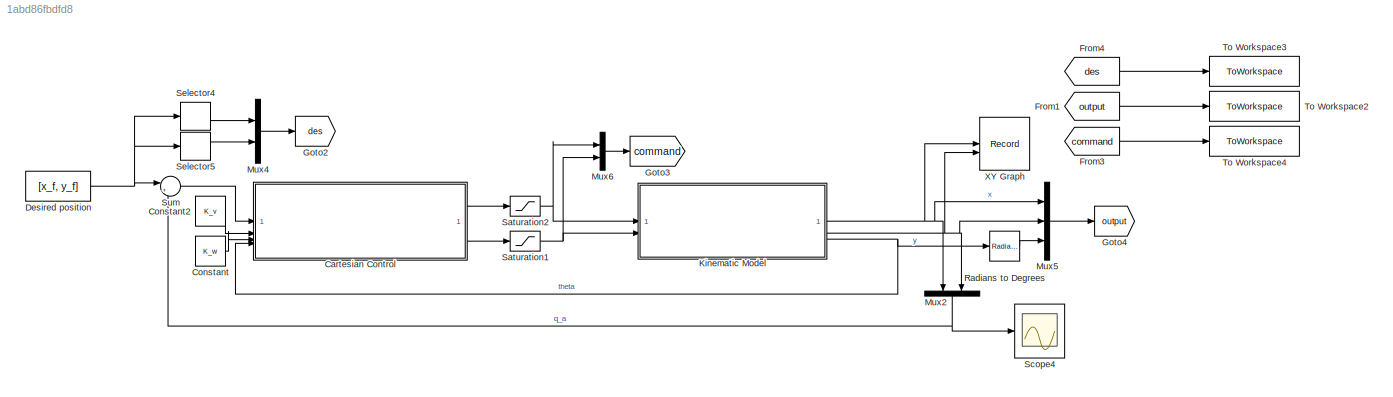
MODEL slx_1abd86fbdfd8
KIND model
CONFIG AbsTol = auto
CONFIG EnableMultiTasking = off
CONFIG FixedStep = auto
CONFIG MaxStep = 0.1
CONFIG MinStep = auto
CONFIG RelTol = 1e-3
CONFIG SampleTimeConstraint = Unconstrained
CONFIG SolverName = FixedStepAuto
CONFIG StartTime = 0.0
CONFIG StopTime = 10.0
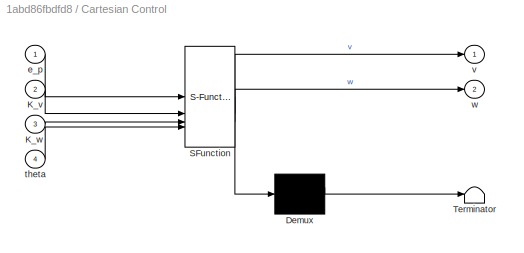
BLOCK [SubSystem] Cartesian Control
  ErrorFcn = Stateflow.Translate.translate
  PermitHierarchicalResolution = ExplicitOnly
  SFBlockType = MATLAB Function
  TreatAsAtomicUnit = on
BLOCK [Demux] Cartesian Control/ Demux 
  Outputs = 1
BLOCK [S-Function] Cartesian Control/ SFunction 
  EnableBusSupport = on
  FunctionName = sf_sfun
  PortCounts = [4 3]
  SFcnIsStateOwnerBlock = off
  SFunctionDeploymentMode = off
  Tag = Stateflow S-Function 2
BLOCK [Terminator] Cartesian Control/ Terminator 
BLOCK [Inport] Cartesian Control/K_v
  Port = 2
BLOCK [Inport] Cartesian Control/K_w
  Port = 3
BLOCK [Inport] Cartesian Control/e_p
BLOCK [Inport] Cartesian Control/theta
  Port = 4
BLOCK [Outport] Cartesian Control/v
BLOCK [Outport] Cartesian Control/w
  Port = 2
BLOCK [Constant] Constant
  Value = K_w
BLOCK [Constant] Constant2
  Value = K_v
BLOCK [Constant] Desired position
  Value = [x_f, y_f]
BLOCK [From] From1
  GotoTag = output
BLOCK [From] From3
  GotoTag = command
BLOCK [From] From4
  GotoTag = des
BLOCK [Goto] Goto2
  GotoTag = des
BLOCK [Goto] Goto3
  GotoTag = command
BLOCK [Goto] Goto4
  GotoTag = output
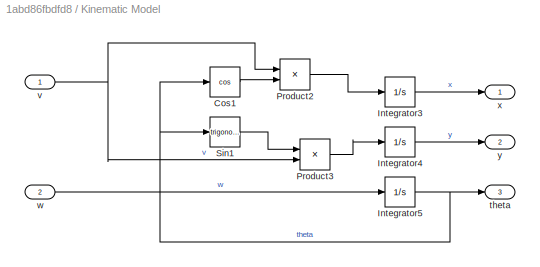
BLOCK [SubSystem] Kinematic Model
BLOCK [Trigonometry] Kinematic Model/Cos1
  Operator = cos
BLOCK [Integrator] Kinematic Model/Integrator3
  InitialCondition = x_i
BLOCK [Integrator] Kinematic Model/Integrator4
  InitialCondition = y_i
BLOCK [Integrator] Kinematic Model/Integrator5
  InitialCondition = theta_i
BLOCK [Product] Kinematic Model/Product2
BLOCK [Product] Kinematic Model/Product3
BLOCK [Trigonometry] Kinematic Model/Sin1
BLOCK [Outport] Kinematic Model/theta
  Port = 3
BLOCK [Inport] Kinematic Model/v
BLOCK [Inport] Kinematic Model/w
  Port = 2
BLOCK [Outport] Kinematic Model/x
BLOCK [Outport] Kinematic Model/y
  Port = 2
BLOCK [Mux] Mux2
  DisplayOption = bar
  Inputs = 2
  NameLocation = left
BLOCK [Mux] Mux4
  DisplayOption = bar
  Inputs = 2
BLOCK [Mux] Mux5
  DisplayOption = bar
  Inputs = 3
BLOCK [Mux] Mux6
  DisplayOption = bar
  Inputs = 2
BLOCK [Reference] Radians to Degrees  REF=simulink_extras/Transformations/Radians
to Degrees
  SourceBlock = simulink_extras/Transformations/Radians\nto Degrees
  SourceType = RadiansToDegrees
BLOCK [Saturate] Saturation1
  LowerLimit = -2
  UpperLimit = 2
BLOCK [Saturate] Saturation2
  LowerLimit = -2
  UpperLimit = 2
BLOCK [Scope] Scope4
  Floating = off
  NumInputPorts = 1
  ScopeSpecificationString = Simulink.scopes.TimeScopeBlockCfg('CurrentConfiguration', extmgr.ConfigurationSet(extmgr.Configuration('Core','General UI',true),extmgr.Configuration('Core','Source UI',true),extmgr.Configuration('Sources','WiredSimulink',true,'DataLoggingVariableName','ScopeData1'),extmgr.Configuration('Visuals','Time Domain',true),extmgr.Configuration('Tools','Plot Navigation',true),extmgr.Configuration('Tools',...<+40ch>
BLOCK [Selector] Selector4
  IndexOptions = Index vector (dialog)
  Indices = 1
  InputPortWidth = 2
  OutputSizes = 1
BLOCK [Selector] Selector5
  IndexOptions = Index vector (dialog)
  Indices = 2
  InputPortWidth = 2
  OutputSizes = 1
BLOCK [Sum] Sum
  Inputs = |+-
BLOCK [ToWorkspace] To Workspace2
  FixptAsFi = on
  MaxDataPoints = inf
  SampleTime = -1
  SaveFormat = Structure With Time
  VariableName = output
BLOCK [ToWorkspace] To Workspace3
  FixptAsFi = on
  MaxDataPoints = inf
  SampleTime = -1
  SaveFormat = Structure With Time
  VariableName = reference
BLOCK [ToWorkspace] To Workspace4
  FixptAsFi = on
  MaxDataPoints = inf
  SampleTime = -1
  SaveFormat = Structure With Time
  VariableName = command
BLOCK [Record] XY Graph
  CompatibilityTag = XY
  FileSettingsInternal = {"entries":[{"content":{"excelSettings":{"content":{},"type":"Streamout.ExcelSettings"}},"type":"Streamout.FileSettingStorage","uuid":"966b7fe5-a256-4086-963b-c256e5ee5b6b"}],"packageUris":["http://schema.mathworks.com/mf0/streamout_blocks/R2020a"],"version":"1.0"}
  Layout = [1 1]
  SignalsInternal = {"entries":[{"content":{"signals":[{"content":{"blockPath":["Cartesian_Regulation/XY Graph2"],"channel":[],"dimensions":[1],"domain":"Cartesian_Regulation/XY Graph2","lineColor":"#a2142f","plots":[1],"port":1,"sid":[],"signalID":8,"signalName":"x"},"type":"RecordBlkView.Signal","uuid":"054d6c21-b5c4-4ca3-a6b3-d04dc938c854"},{"content":{"blockPath":["Cartesian_Regulation/XY Graph2"],"channel":[],"d...<+394ch>
  VisualizationBindings = {"xyplotplugin":{"info":[{"series":[{"bindingParametersList":[{"parameter":"X-Axis","signalID":8,"signalName":"x"},{"parameter":"Y-Axis","signalID":11,"signalName":"y"}],"seriesID":61401}],"subplotID":1}]}}
LINE Cartesian Control:1 -> Saturation2:1
LINE Cartesian Control:2 -> Saturation1:1
LINE Constant2:1 -> Cartesian Control:2
LINE Constant:1 -> Cartesian Control:3
NET Desired position:1 -> Selector4:1, Selector5:1, Sum:1
LINE From1:1 -> To Workspace2:1
LINE From3:1 -> To Workspace4:1
LINE From4:1 -> To Workspace3:1
LINE Kinematic Model/Cos1:1 -> Kinematic Model/Product2:2
LINE Kinematic Model/Integrator3:1 -> Kinematic Model/x:1
LINE Kinematic Model/Integrator4:1 -> Kinematic Model/y:1
NET Kinematic Model/Integrator5:1 -> Kinematic Model/Cos1:1, Kinematic Model/Sin1:1, Kinematic Model/theta:1
LINE Kinematic Model/Product2:1 -> Kinematic Model/Integrator3:1
LINE Kinematic Model/Product3:1 -> Kinematic Model/Integrator4:1
LINE Kinematic Model/Sin1:1 -> Kinematic Model/Product3:1
NET Kinematic Model/v:1 -> Kinematic Model/Product2:1, Kinematic Model/Product3:2
LINE Kinematic Model/w:1 -> Kinematic Model/Integrator5:1
NET Kinematic Model:1 -> Mux2:1, Mux5:1, XY Graph:1
NET Kinematic Model:2 -> Mux2:2, Mux5:2, XY Graph:2
NET Kinematic Model:3 -> Cartesian Control:4, Radians to Degrees:1
NET Mux2:1 -> Scope4:1, Sum:2
LINE Mux4:1 -> Goto2:1
LINE Mux5:1 -> Goto4:1
LINE Mux6:1 -> Goto3:1
LINE Radians to Degrees:1 -> Mux5:3
NET Saturation1:1 -> Kinematic Model:2, Mux6:2
NET Saturation2:1 -> Kinematic Model:1, Mux6:1
LINE Selector4:1 -> Mux4:1
LINE Selector5:1 -> Mux4:2
LINE Sum:1 -> Cartesian Control:1
note: NET lines group one-source signal fan-out (src -> all destinations, sorted); 1:1 wires keep LINE
CHART Cartesian Control states=1 transitions=1
  STATE_LABEL 'eML_blk_kernel()'
  STATE_LABEL 'SCRIPT:\nfunction [v,w] = cartesian_controller(e_p, K_v, K_w, theta)\n\n    v = K_v * (e_p(1)*cos(theta) + e_p(2)*sin(theta));\n    w = K_w * (atan2(e_p(2),e_p(1))- theta);\n\nend\n'
CHART  states=0 transitions=0
